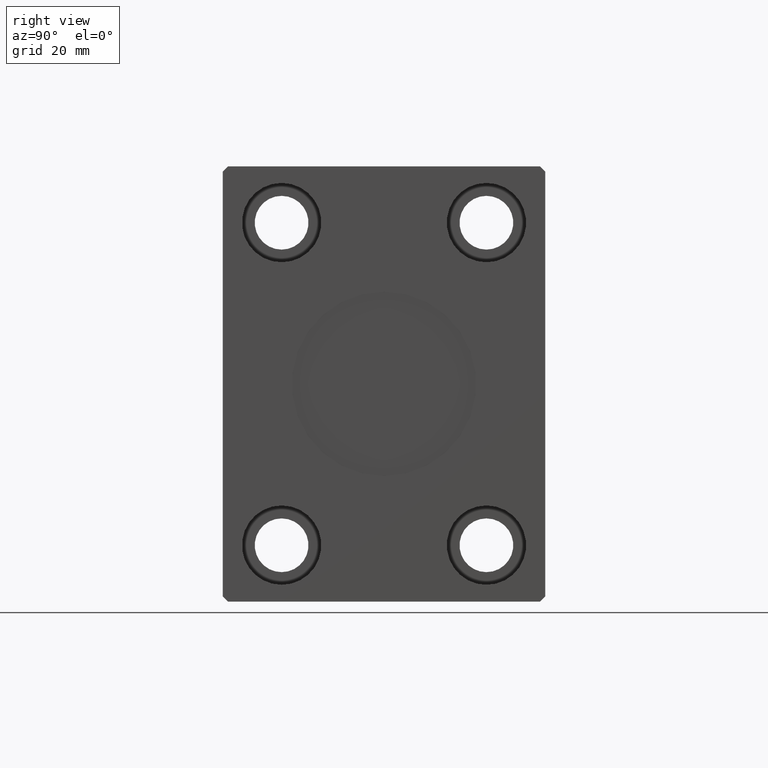
[diagram: clean part render]
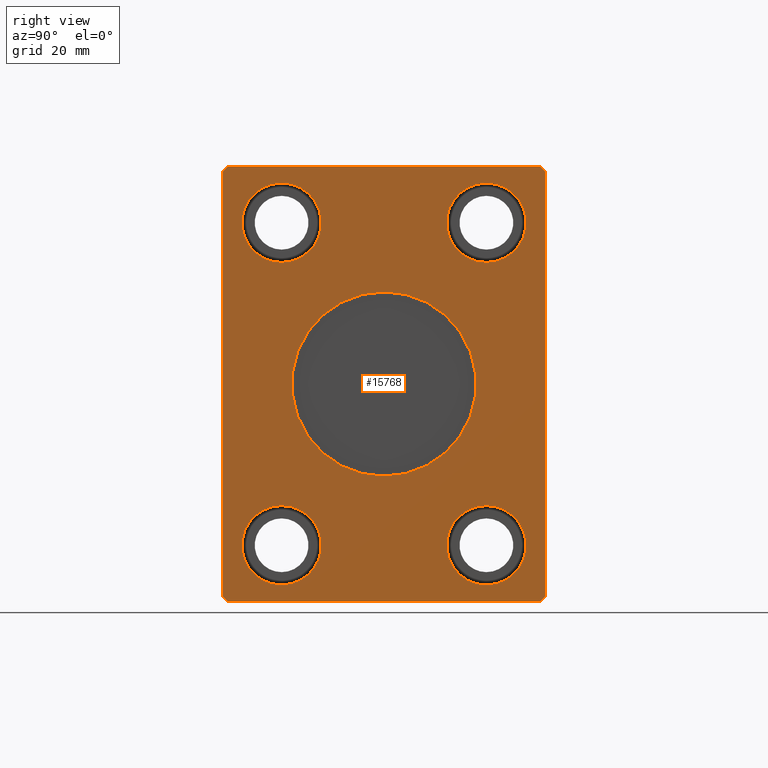
[diagram: same view with one face highlighted and labeled with its STEP entity id]
A machine part, right view. The second image highlights one B-rep face of the part: STEP entity #15768.
In plain terms, the highlighted planar face has unit normal (1, 0, 0).
Its self-contained STEP definition (entity closure, byte-faithful):
#513 = DIRECTION ( 'NONE',  ( 1.000000000000000000, 0.000000000000000000, 0.000000000000000000 ) ) ;
#728 = CARTESIAN_POINT ( 'NONE',  ( 96.00000000000000000, 0.000000000000000000, 0.000000000000000000 ) ) ;
#760 = EDGE_CURVE ( 'NONE', #36018, #27174, #6705, .T. ) ;
#780 = DIRECTION ( 'NONE',  ( 0.000000000000000000, -0.7071067811865474617, 0.7071067811865474617 ) ) ;
#820 = ORIENTED_EDGE ( 'NONE', *, *, #29052, .T. ) ;
#962 = AXIS2_PLACEMENT_3D ( 'NONE', #23345, #17337, #23979 ) ;
#1349 = VERTEX_POINT ( 'NONE', #4213 ) ;
#1397 = DIRECTION ( 'NONE',  ( 0.000000000000000000, 0.000000000000000000, -1.000000000000000000 ) ) ;
#1852 = CARTESIAN_POINT ( 'NONE',  ( 96.00000000000000000, 20.00000000000000355, -31.49999999999998579 ) ) ;
#2054 = CARTESIAN_POINT ( 'NONE',  ( 96.00000000000000000, 31.50000000000001421, -41.50000000000000711 ) ) ;
#2070 = CIRCLE ( 'NONE', #6163, 18.00000000000000000 ) ;
#2120 = CARTESIAN_POINT ( 'NONE',  ( 96.00000000000000000, 30.50000000000001776, -42.50000000000000711 ) ) ;
#2907 = DIRECTION ( 'NONE',  ( 0.000000000000000000, 0.000000000000000000, 1.000000000000000000 ) ) ;
#3086 = ORIENTED_EDGE ( 'NONE', *, *, #39516, .F. ) ;
#4115 = LINE ( 'NONE', #23391, #38524 ) ;
#4122 = EDGE_CURVE ( 'NONE', #18363, #34538, #12091, .T. ) ;
#4213 = CARTESIAN_POINT ( 'NONE',  ( 96.00000000000000000, -30.50000000000000355, 42.49999999999999289 ) ) ;
#4370 = DIRECTION ( 'NONE',  ( 0.000000000000000000, 0.7071067811865451302, -0.7071067811865500152 ) ) ;
#4378 = DIRECTION ( 'NONE',  ( 0.000000000000000000, 0.000000000000000000, 1.000000000000000000 ) ) ;
#4716 = VERTEX_POINT ( 'NONE', #29920 ) ;
#4824 = CARTESIAN_POINT ( 'NONE',  ( 96.00000000000000000, -19.99999999999999645, -31.49999999999998579 ) ) ;
#5902 = DIRECTION ( 'NONE',  ( -1.000000000000000000, -0.000000000000000000, -0.000000000000000000 ) ) ;
#5931 = LINE ( 'NONE', #28855, #13388 ) ;
#6080 = ORIENTED_EDGE ( 'NONE', *, *, #30138, .T. ) ;
#6163 = AXIS2_PLACEMENT_3D ( 'NONE', #728, #30496, #19799 ) ;
#6252 = AXIS2_PLACEMENT_3D ( 'NONE', #11002, #513, #10582 ) ;
#6347 = ORIENTED_EDGE ( 'NONE', *, *, #4122, .T. ) ;
#6509 = AXIS2_PLACEMENT_3D ( 'NONE', #8755, #11972, #18618 ) ;
#6672 = CARTESIAN_POINT ( 'NONE',  ( 96.00000000000000000, -19.99999999999999645, 39.25000000000001421 ) ) ;
#6705 = CIRCLE ( 'NONE', #21056, 18.00000000000000000 ) ;
#7437 = CIRCLE ( 'NONE', #19096, 7.750000000000000000 ) ;
#8443 = VERTEX_POINT ( 'NONE', #25966 ) ;
#8755 = CARTESIAN_POINT ( 'NONE',  ( 96.00000000000000000, 20.00000000000000355, -31.49999999999998579 ) ) ;
#8978 = CARTESIAN_POINT ( 'NONE',  ( 96.00000000000000000, -19.99999999999999645, 31.50000000000001421 ) ) ;
#9004 = CARTESIAN_POINT ( 'NONE',  ( 96.00000000000000000, 30.50000000000001421, 42.49999999999999289 ) ) ;
#9053 = CIRCLE ( 'NONE', #16579, 7.750000000000000000 ) ;
#9129 = EDGE_LOOP ( 'NONE', ( #39305, #20155 ) ) ;
#9202 = VERTEX_POINT ( 'NONE', #18705 ) ;
#9673 = CIRCLE ( 'NONE', #35003, 7.750000000000000000 ) ;
#9752 = VECTOR ( 'NONE', #780, 1000.000000000000114 ) ;
#10582 = DIRECTION ( 'NONE',  ( 0.000000000000000000, 0.000000000000000000, -1.000000000000000000 ) ) ;
#10733 = DIRECTION ( 'NONE',  ( 1.000000000000000000, -0.000000000000000000, -0.000000000000000000 ) ) ;
#10787 = CARTESIAN_POINT ( 'NONE',  ( 96.00000000000000000, 31.50000000000001421, -41.50000000000000711 ) ) ;
#10791 = PLANE ( 'NONE',  #6252 ) ;
#10834 = EDGE_CURVE ( 'NONE', #34214, #4716, #17224, .T. ) ;
#11002 = CARTESIAN_POINT ( 'NONE',  ( 96.00000000000000000, 0.000000000000000000, 0.000000000000000000 ) ) ;
#11288 = CARTESIAN_POINT ( 'NONE',  ( 96.00000000000000000, 20.00000000000000355, 31.50000000000001421 ) ) ;
#11598 = AXIS2_PLACEMENT_3D ( 'NONE', #8978, #17794, #28484 ) ;
#11972 = DIRECTION ( 'NONE',  ( -1.000000000000000000, -0.000000000000000000, -0.000000000000000000 ) ) ;
#12091 = LINE ( 'NONE', #14465, #19770 ) ;
#12605 = EDGE_CURVE ( 'NONE', #13833, #9202, #9673, .T. ) ;
#13317 = DIRECTION ( 'NONE',  ( 0.000000000000000000, 1.000000000000000000, 0.000000000000000000 ) ) ;
#13368 = FACE_BOUND ( 'NONE', #24047, .T. ) ;
#13388 = VECTOR ( 'NONE', #31856, 999.9999999999998863 ) ;
#13833 = VERTEX_POINT ( 'NONE', #42268 ) ;
#13878 = CARTESIAN_POINT ( 'NONE',  ( 96.00000000000000000, 20.00000000000000355, -23.74999999999998579 ) ) ;
#14413 = ORIENTED_EDGE ( 'NONE', *, *, #38256, .T. ) ;
#14465 = CARTESIAN_POINT ( 'NONE',  ( 96.00000000000000000, -31.50000000000000000, 41.49999999999999289 ) ) ;
#14996 = VERTEX_POINT ( 'NONE', #19091 ) ;
#15574 = CARTESIAN_POINT ( 'NONE',  ( 96.00000000000000000, 2.204364238465235428E-15, 18.00000000000000000 ) ) ;
#15768 = ADVANCED_FACE ( 'NONE', ( #33929, #17653, #13368, #20237, #40148, #39939 ), #10791, .T. ) ;
#16579 = AXIS2_PLACEMENT_3D ( 'NONE', #11288, #18158, #31014 ) ;
#17224 = LINE ( 'NONE', #10787, #18550 ) ;
#17337 = DIRECTION ( 'NONE',  ( -1.000000000000000000, -0.000000000000000000, -0.000000000000000000 ) ) ;
#17350 = ORIENTED_EDGE ( 'NONE', *, *, #39864, .T. ) ;
#17416 = EDGE_CURVE ( 'NONE', #23958, #34214, #31258, .T. ) ;
#17425 = CARTESIAN_POINT ( 'NONE',  ( 96.00000000000000000, -31.50000000000000000, -41.50000000000000711 ) ) ;
#17653 = FACE_BOUND ( 'NONE', #36380, .T. ) ;
#17754 = CIRCLE ( 'NONE', #11598, 7.750000000000000000 ) ;
#17794 = DIRECTION ( 'NONE',  ( -1.000000000000000000, -0.000000000000000000, -0.000000000000000000 ) ) ;
#18050 = ORIENTED_EDGE ( 'NONE', *, *, #10834, .T. ) ;
#18158 = DIRECTION ( 'NONE',  ( 1.000000000000000000, -0.000000000000000000, -0.000000000000000000 ) ) ;
#18293 = CARTESIAN_POINT ( 'NONE',  ( 96.00000000000000000, 0.000000000000000000, -18.00000000000000000 ) ) ;
#18363 = VERTEX_POINT ( 'NONE', #20839 ) ;
#18550 = VECTOR ( 'NONE', #4378, 1000.000000000000000 ) ;
#18618 = DIRECTION ( 'NONE',  ( 0.000000000000000000, 0.000000000000000000, 1.000000000000000000 ) ) ;
#18705 = CARTESIAN_POINT ( 'NONE',  ( 96.00000000000000000, -19.99999999999999645, -39.24999999999998579 ) ) ;
#19091 = CARTESIAN_POINT ( 'NONE',  ( 96.00000000000000000, -30.50000000000000711, -42.50000000000000711 ) ) ;
#19096 = AXIS2_PLACEMENT_3D ( 'NONE', #33373, #20726, #19884 ) ;
#19148 = EDGE_CURVE ( 'NONE', #41412, #8443, #9053, .T. ) ;
#19372 = DIRECTION ( 'NONE',  ( 0.000000000000000000, 0.000000000000000000, -1.000000000000000000 ) ) ;
#19770 = VECTOR ( 'NONE', #27538, 1000.000000000000000 ) ;
#19799 = DIRECTION ( 'NONE',  ( 0.000000000000000000, 0.000000000000000000, -1.000000000000000000 ) ) ;
#19884 = DIRECTION ( 'NONE',  ( 0.000000000000000000, 0.000000000000000000, -1.000000000000000000 ) ) ;
#20078 = EDGE_CURVE ( 'NONE', #4716, #32069, #39983, .T. ) ;
#20151 = CARTESIAN_POINT ( 'NONE',  ( 96.00000000000000000, 20.00000000000000355, -39.24999999999998579 ) ) ;
#20155 = ORIENTED_EDGE ( 'NONE', *, *, #19148, .F. ) ;
#20237 = FACE_OUTER_BOUND ( 'NONE', #33999, .T. ) ;
#20726 = DIRECTION ( 'NONE',  ( 1.000000000000000000, -0.000000000000000000, -0.000000000000000000 ) ) ;
#20813 = EDGE_CURVE ( 'NONE', #14996, #23958, #4115, .T. ) ;
#20839 = CARTESIAN_POINT ( 'NONE',  ( 96.00000000000000000, -31.50000000000000000, 41.49999999999999289 ) ) ;
#21056 = AXIS2_PLACEMENT_3D ( 'NONE', #29851, #36500, #19372 ) ;
#21439 = CARTESIAN_POINT ( 'NONE',  ( 96.00000000000000000, -19.99999999999999645, -31.49999999999998579 ) ) ;
#21788 = EDGE_LOOP ( 'NONE', ( #35179, #38384 ) ) ;
#22052 = VERTEX_POINT ( 'NONE', #20151 ) ;
#22183 = CARTESIAN_POINT ( 'NONE',  ( 96.00000000000000000, 30.50000000000001421, 42.49999999999999289 ) ) ;
#22330 = AXIS2_PLACEMENT_3D ( 'NONE', #1852, #5902, #2907 ) ;
#23111 = ORIENTED_EDGE ( 'NONE', *, *, #17416, .T. ) ;
#23345 = CARTESIAN_POINT ( 'NONE',  ( 96.00000000000000000, -19.99999999999999645, 31.50000000000001421 ) ) ;
#23391 = CARTESIAN_POINT ( 'NONE',  ( 96.00000000000000000, -30.50000000000000711, -42.50000000000000711 ) ) ;
#23958 = VERTEX_POINT ( 'NONE', #25772 ) ;
#23979 = DIRECTION ( 'NONE',  ( 0.000000000000000000, 0.000000000000000000, 1.000000000000000000 ) ) ;
#24047 = EDGE_LOOP ( 'NONE', ( #820, #28209 ) ) ;
#24282 = EDGE_CURVE ( 'NONE', #24792, #40911, #33792, .T. ) ;
#24792 = VERTEX_POINT ( 'NONE', #31309 ) ;
#25772 = CARTESIAN_POINT ( 'NONE',  ( 96.00000000000000000, 30.50000000000001776, -42.50000000000000711 ) ) ;
#25966 = CARTESIAN_POINT ( 'NONE',  ( 96.00000000000000000, 20.00000000000000355, 23.75000000000001421 ) ) ;
#26370 = VERTEX_POINT ( 'NONE', #13878 ) ;
#27174 = VERTEX_POINT ( 'NONE', #15574 ) ;
#27538 = DIRECTION ( 'NONE',  ( 0.000000000000000000, 0.000000000000000000, -1.000000000000000000 ) ) ;
#28111 = ORIENTED_EDGE ( 'NONE', *, *, #20813, .T. ) ;
#28209 = ORIENTED_EDGE ( 'NONE', *, *, #31860, .T. ) ;
#28347 = CARTESIAN_POINT ( 'NONE',  ( 96.00000000000000000, -31.50000000000000000, -41.50000000000000711 ) ) ;
#28484 = DIRECTION ( 'NONE',  ( 0.000000000000000000, 0.000000000000000000, 1.000000000000000000 ) ) ;
#28825 = LINE ( 'NONE', #22183, #33441 ) ;
#28855 = CARTESIAN_POINT ( 'NONE',  ( 96.00000000000000000, -30.50000000000000355, 42.49999999999999289 ) ) ;
#29052 = EDGE_CURVE ( 'NONE', #22052, #26370, #35939, .T. ) ;
#29851 = CARTESIAN_POINT ( 'NONE',  ( 96.00000000000000000, 0.000000000000000000, 0.000000000000000000 ) ) ;
#29920 = CARTESIAN_POINT ( 'NONE',  ( 96.00000000000000000, 31.50000000000001421, 41.49999999999999289 ) ) ;
#29956 = ORIENTED_EDGE ( 'NONE', *, *, #20078, .T. ) ;
#30138 = EDGE_CURVE ( 'NONE', #1349, #18363, #5931, .T. ) ;
#30496 = DIRECTION ( 'NONE',  ( 1.000000000000000000, 0.000000000000000000, 0.000000000000000000 ) ) ;
#31014 = DIRECTION ( 'NONE',  ( 0.000000000000000000, 0.000000000000000000, -1.000000000000000000 ) ) ;
#31170 = DIRECTION ( 'NONE',  ( 1.000000000000000000, -0.000000000000000000, -0.000000000000000000 ) ) ;
#31258 = LINE ( 'NONE', #2120, #36405 ) ;
#31309 = CARTESIAN_POINT ( 'NONE',  ( 96.00000000000000000, -19.99999999999999645, 23.75000000000001421 ) ) ;
#31536 = EDGE_LOOP ( 'NONE', ( #3086, #40344 ) ) ;
#31856 = DIRECTION ( 'NONE',  ( 0.000000000000000000, -0.7071067811865462405, -0.7071067811865489050 ) ) ;
#31860 = EDGE_CURVE ( 'NONE', #26370, #22052, #35322, .T. ) ;
#32030 = CARTESIAN_POINT ( 'NONE',  ( 96.00000000000000000, 20.00000000000000355, 39.25000000000001421 ) ) ;
#32069 = VERTEX_POINT ( 'NONE', #9004 ) ;
#32098 = CIRCLE ( 'NONE', #40290, 7.750000000000000000 ) ;
#33373 = CARTESIAN_POINT ( 'NONE',  ( 96.00000000000000000, 20.00000000000000355, 31.50000000000001421 ) ) ;
#33441 = VECTOR ( 'NONE', #41058, 1000.000000000000000 ) ;
#33710 = LINE ( 'NONE', #17425, #37457 ) ;
#33792 = CIRCLE ( 'NONE', #962, 7.750000000000000000 ) ;
#33929 = FACE_BOUND ( 'NONE', #21788, .T. ) ;
#33999 = EDGE_LOOP ( 'NONE', ( #29956, #14413, #6080, #6347, #39240, #28111, #23111, #18050 ) ) ;
#34214 = VERTEX_POINT ( 'NONE', #2054 ) ;
#34538 = VERTEX_POINT ( 'NONE', #28347 ) ;
#35003 = AXIS2_PLACEMENT_3D ( 'NONE', #21439, #10733, #40942 ) ;
#35179 = ORIENTED_EDGE ( 'NONE', *, *, #760, .F. ) ;
#35322 = CIRCLE ( 'NONE', #22330, 7.750000000000000000 ) ;
#35939 = CIRCLE ( 'NONE', #6509, 7.750000000000000000 ) ;
#36018 = VERTEX_POINT ( 'NONE', #18293 ) ;
#36380 = EDGE_LOOP ( 'NONE', ( #37448, #17350 ) ) ;
#36405 = VECTOR ( 'NONE', #40903, 999.9999999999998863 ) ;
#36500 = DIRECTION ( 'NONE',  ( 1.000000000000000000, 0.000000000000000000, 0.000000000000000000 ) ) ;
#36859 = EDGE_CURVE ( 'NONE', #34538, #14996, #33710, .T. ) ;
#37448 = ORIENTED_EDGE ( 'NONE', *, *, #24282, .T. ) ;
#37457 = VECTOR ( 'NONE', #4370, 1000.000000000000114 ) ;
#38256 = EDGE_CURVE ( 'NONE', #32069, #1349, #28825, .T. ) ;
#38384 = ORIENTED_EDGE ( 'NONE', *, *, #41508, .F. ) ;
#38524 = VECTOR ( 'NONE', #13317, 1000.000000000000000 ) ;
#39240 = ORIENTED_EDGE ( 'NONE', *, *, #36859, .T. ) ;
#39285 = EDGE_CURVE ( 'NONE', #8443, #41412, #7437, .T. ) ;
#39305 = ORIENTED_EDGE ( 'NONE', *, *, #39285, .F. ) ;
#39516 = EDGE_CURVE ( 'NONE', #9202, #13833, #32098, .T. ) ;
#39774 = CARTESIAN_POINT ( 'NONE',  ( 96.00000000000000000, 31.50000000000001421, 41.49999999999999289 ) ) ;
#39864 = EDGE_CURVE ( 'NONE', #40911, #24792, #17754, .T. ) ;
#39939 = FACE_BOUND ( 'NONE', #9129, .T. ) ;
#39983 = LINE ( 'NONE', #39774, #9752 ) ;
#40148 = FACE_BOUND ( 'NONE', #31536, .T. ) ;
#40290 = AXIS2_PLACEMENT_3D ( 'NONE', #4824, #31170, #1397 ) ;
#40344 = ORIENTED_EDGE ( 'NONE', *, *, #12605, .F. ) ;
#40903 = DIRECTION ( 'NONE',  ( 0.000000000000000000, 0.7071067811865462405, 0.7071067811865489050 ) ) ;
#40911 = VERTEX_POINT ( 'NONE', #6672 ) ;
#40942 = DIRECTION ( 'NONE',  ( 0.000000000000000000, 0.000000000000000000, -1.000000000000000000 ) ) ;
#41058 = DIRECTION ( 'NONE',  ( 0.000000000000000000, -1.000000000000000000, 0.000000000000000000 ) ) ;
#41412 = VERTEX_POINT ( 'NONE', #32030 ) ;
#41508 = EDGE_CURVE ( 'NONE', #27174, #36018, #2070, .T. ) ;
#42268 = CARTESIAN_POINT ( 'NONE',  ( 96.00000000000000000, -19.99999999999999645, -23.74999999999998579 ) ) ;